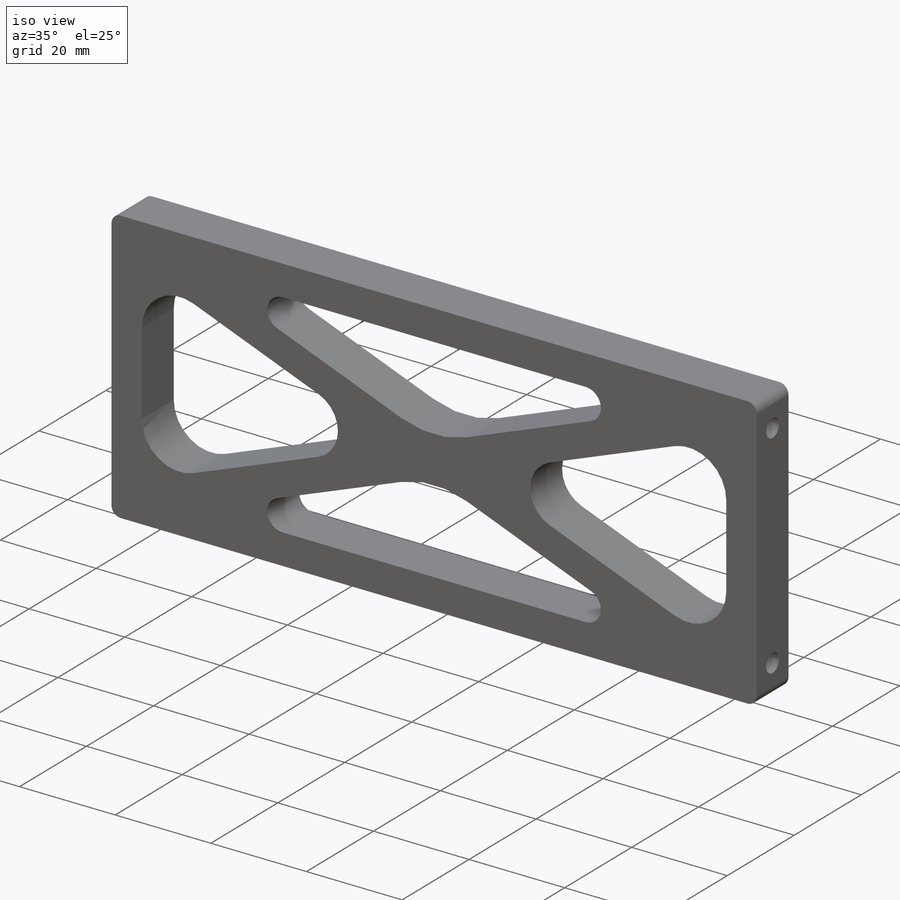
[diagram: iso view]
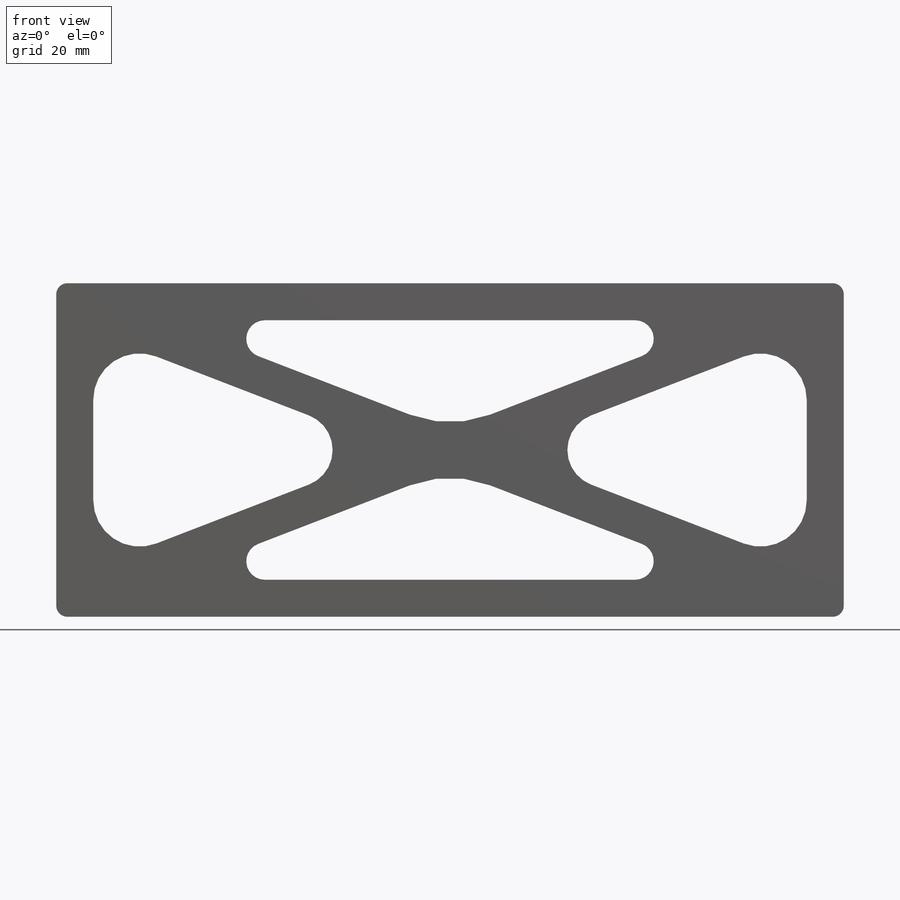
[diagram: front view]
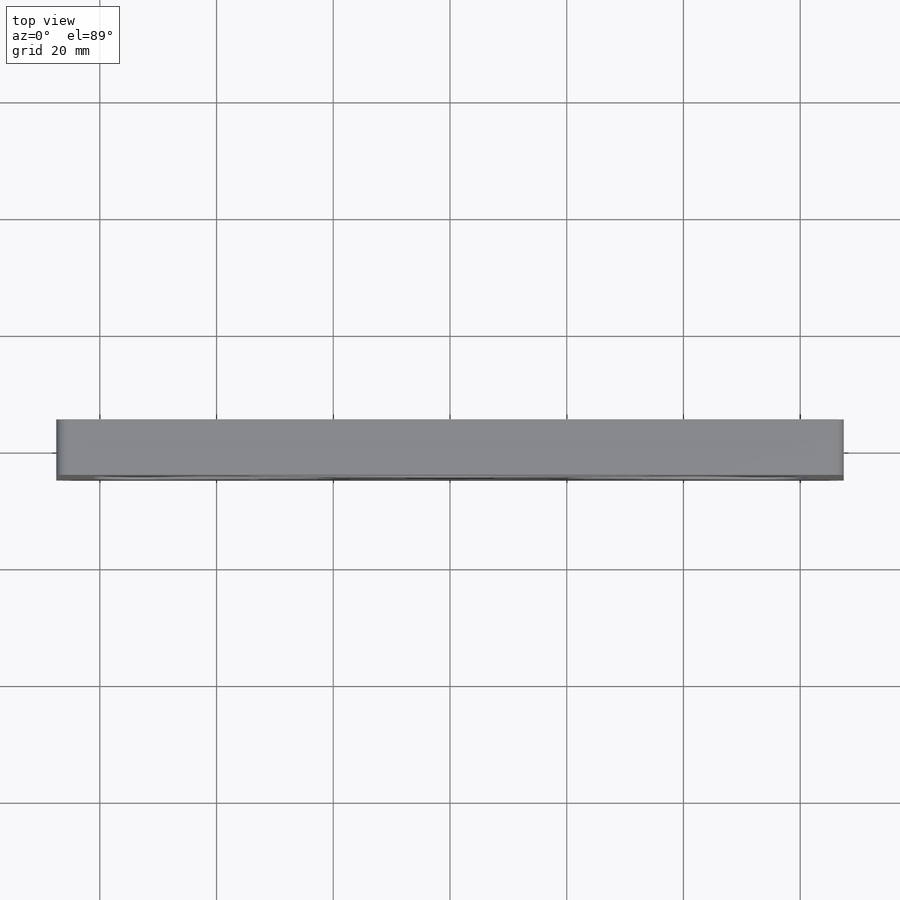
[diagram: top view]
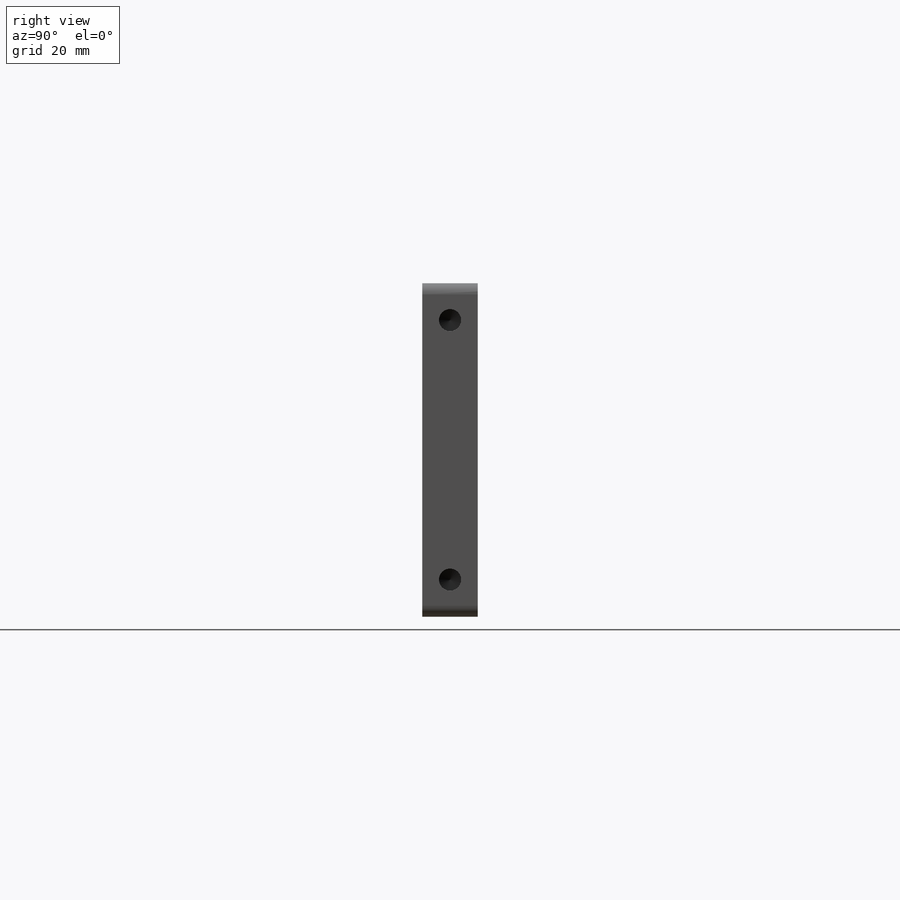
[diagram: right view]
SOLIDWORKS PART (.sldprt)
format: sldprt  version: not decoded by parser v0  size: 318,464 bytes
history: native  units: mm
features: sketch x4, thread x2, material x1, extrude x1, cut_extrude x1, hole x1, mirror x1, fillet x1 (+11 scaffold rows collapsed)
feature tree (23):
  scaffold x11  (default folders/planes/origin — collapsed)
  material  "6061-T6 (SS)"
  sketch  "Sketch1"  dims[D1=134.9248mm D2=57.15mm D3=44.45mm]
  extrude  "Boss-Extrude1"  Depth=9.525mm
  sketch  "Sketch3"  dims[D3=6.35mm D6=3.175mm D7=19.05mm D8=7.9375mm D1=6.35mm D2=3.175mm D4=3.175mm D5=6.35mm D9=2.54mm D10=2.54mm D11=2.54mm D12=2.54mm]
  cut_extrude  "Cut-Extrude1"  [1 undecoded]
  hole  "#10-24 Tapped Hole1"  Diameter=3.7973mm Depth=12.954mm
  sketch  "Sketch5"  dims[D1=44.45mm]
  sketch  "Sketch4"  dims[hole-wizard template sketch: 47 standard entries collapsed; hole parameters kept: c15.Tap Drill Depth=12.954mm c15.D3=~14.816244mm c15.Drill Angle=118.0deg]
  thread  "Hole Thread1"  Diameter=9.652mm  [1 undecoded]
  thread  "Hole Thread2"  Diameter=9.652mm  [1 undecoded]
  mirror  "Mirror1"
  fillet  "Fillet1"  Radius=1.905mm
decode coverage: 9 of 11 modeling features carry decoded parameters
note: ~ marks probable driven/reference dimensions
note: 3 parameter values undecoded
note: suppression state not decoded; provenance and decode notes live in map.json
